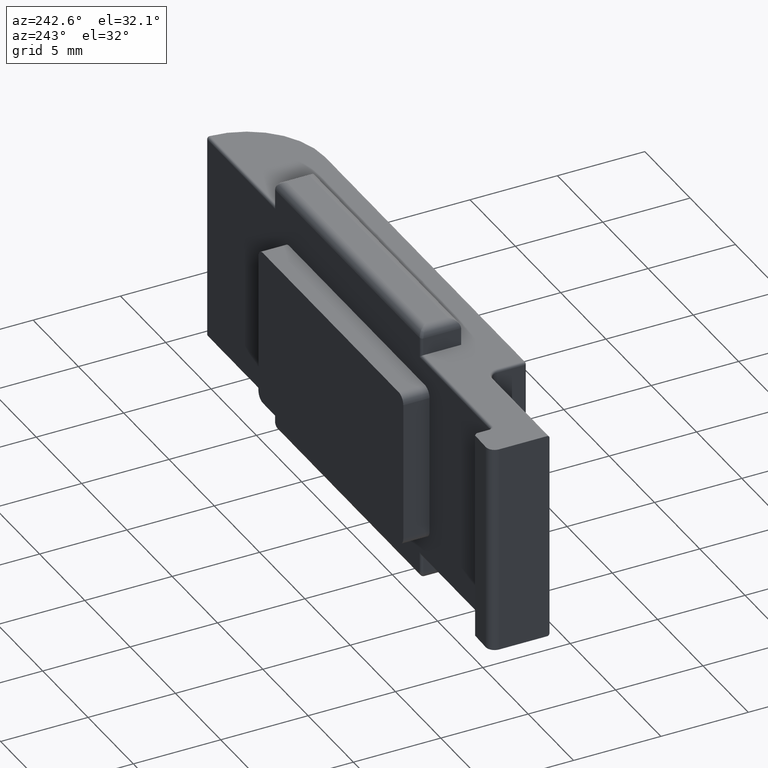
[diagram: clean part render]
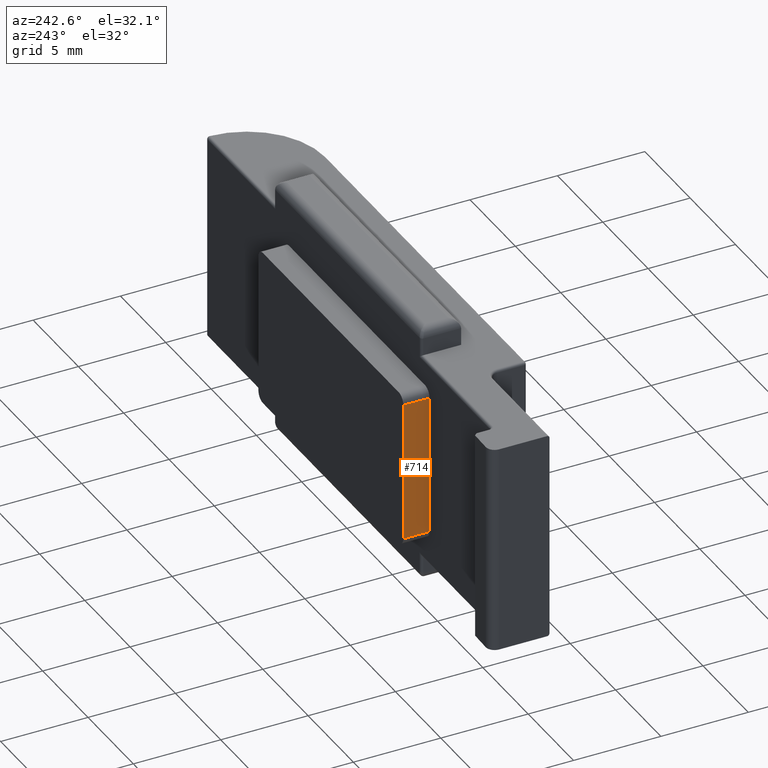
[diagram: same view with one face highlighted and labeled with its STEP entity id]
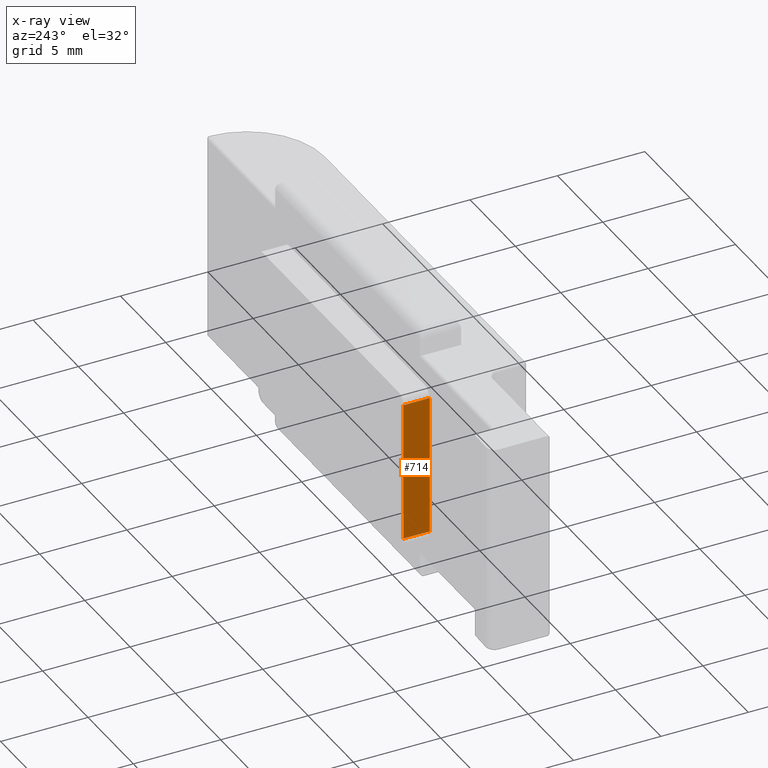
[diagram: x-ray of the same camera — body ghosted, the highlighted face saturated]
A machine part, auxiliary view. The second image highlights one B-rep face of the part: STEP entity #714.
The next image is the same camera in x-ray: the body ghosted, the highlighted face saturated — about 0% of this face is hidden behind the body in this view.
In plain terms, the highlighted planar face has unit normal (1, -0, -0).
Its self-contained STEP definition (entity closure, byte-faithful):
#24 = ORIENTED_EDGE ( 'NONE', *, *, #1970, .T. ) ;
#86 = FACE_OUTER_BOUND ( 'NONE', #1650, .T. ) ;
#100 = PLANE ( 'NONE',  #733 ) ;
#101 = VERTEX_POINT ( 'NONE', #422 ) ;
#143 = CARTESIAN_POINT ( 'NONE',  ( 2.047413023856825998, -0.6000000000000008660, -2.959746197920916770E-16 ) ) ;
#161 = VERTEX_POINT ( 'NONE', #1984 ) ;
#172 = DIRECTION ( 'NONE',  ( 1.445602896647339903E-16, -5.881522963199497010E-34, 1.000000000000000000 ) ) ;
#298 = EDGE_CURVE ( 'NONE', #101, #1735, #1378, .T. ) ;
#300 = CARTESIAN_POINT ( 'NONE',  ( 2.047413023856825998, 0.8999999999999992450, -2.959746197920916770E-16 ) ) ;
#422 = CARTESIAN_POINT ( 'NONE',  ( 2.047413023856826442, 0.8999999999999992450, 2.000000000000004885 ) ) ;
#440 = DIRECTION ( 'NONE',  ( -1.445602896647339903E-16, 0.000000000000000000, -1.000000000000000000 ) ) ;
#490 = VECTOR ( 'NONE', #2066, 1000.000000000000000 ) ;
#606 = LINE ( 'NONE', #1041, #490 ) ;
#683 = DIRECTION ( 'NONE',  ( 3.446287897283867127E-18, 1.000000000000000000, -0.000000000000000000 ) ) ;
#714 = ADVANCED_FACE ( 'NONE', ( #86 ), #100, .F. ) ;
#733 = AXIS2_PLACEMENT_3D ( 'NONE', #2131, #1293, #440 ) ;
#859 = VERTEX_POINT ( 'NONE', #1339 ) ;
#925 = VECTOR ( 'NONE', #172, 1000.000000000000000 ) ;
#929 = VECTOR ( 'NONE', #1586, 1000.000000000000000 ) ;
#932 = EDGE_CURVE ( 'NONE', #101, #161, #606, .T. ) ;
#1041 = CARTESIAN_POINT ( 'NONE',  ( 2.047413023856826442, 0.8999999999999992450, 2.000000000000004885 ) ) ;
#1051 = ORIENTED_EDGE ( 'NONE', *, *, #932, .T. ) ;
#1144 = ORIENTED_EDGE ( 'NONE', *, *, #298, .F. ) ;
#1210 = LINE ( 'NONE', #1843, #2161 ) ;
#1276 = CARTESIAN_POINT ( 'NONE',  ( 2.047413023856827330, 0.8999999999999992450, 10.00000000000000000 ) ) ;
#1293 = DIRECTION ( 'NONE',  ( 1.000000000000000000, -3.446287897283867127E-18, -1.445602896647339903E-16 ) ) ;
#1339 = CARTESIAN_POINT ( 'NONE',  ( 2.047413023856827330, -0.6000000000000008660, 10.00000000000000000 ) ) ;
#1378 = LINE ( 'NONE', #300, #929 ) ;
#1432 = EDGE_CURVE ( 'NONE', #859, #1735, #1210, .T. ) ;
#1586 = DIRECTION ( 'NONE',  ( 1.445602896647339903E-16, -5.881522963199497010E-34, 1.000000000000000000 ) ) ;
#1650 = EDGE_LOOP ( 'NONE', ( #24, #2175, #1144, #1051 ) ) ;
#1735 = VERTEX_POINT ( 'NONE', #1276 ) ;
#1843 = CARTESIAN_POINT ( 'NONE',  ( 2.047413023856827330, 0.8999999999999992450, 10.00000000000000000 ) ) ;
#1970 = EDGE_CURVE ( 'NONE', #161, #859, #2016, .T. ) ;
#1984 = CARTESIAN_POINT ( 'NONE',  ( 2.047413023856826442, -0.6000000000000008660, 2.000000000000004885 ) ) ;
#2016 = LINE ( 'NONE', #143, #925 ) ;
#2066 = DIRECTION ( 'NONE',  ( -3.446287897283867127E-18, -1.000000000000000000, 0.000000000000000000 ) ) ;
#2131 = CARTESIAN_POINT ( 'NONE',  ( 2.047413023856825998, 0.8999999999999992450, -2.959746197920916770E-16 ) ) ;
#2161 = VECTOR ( 'NONE', #683, 1000.000000000000000 ) ;
#2175 = ORIENTED_EDGE ( 'NONE', *, *, #1432, .T. ) ;